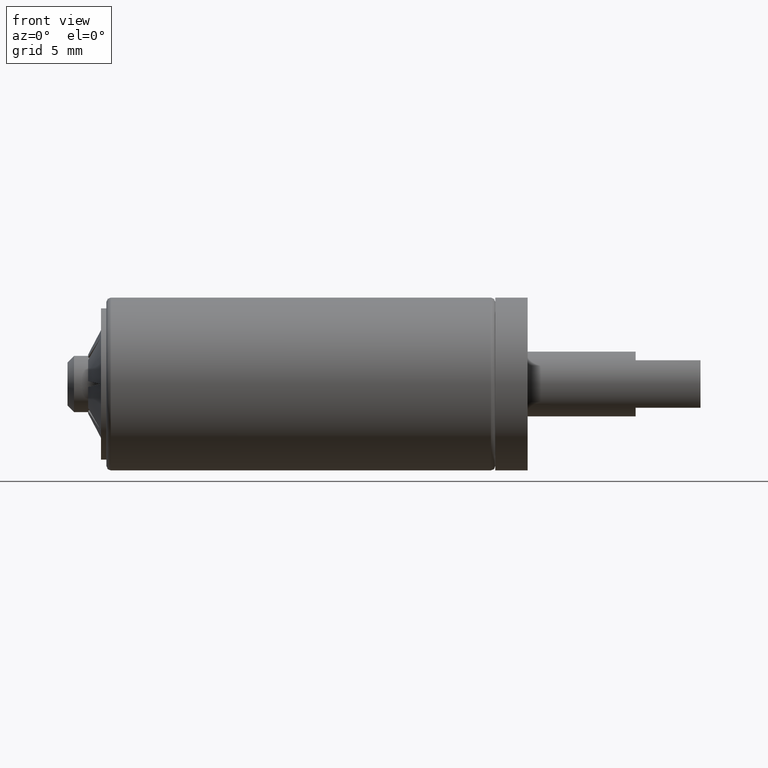
[diagram: clean part render]
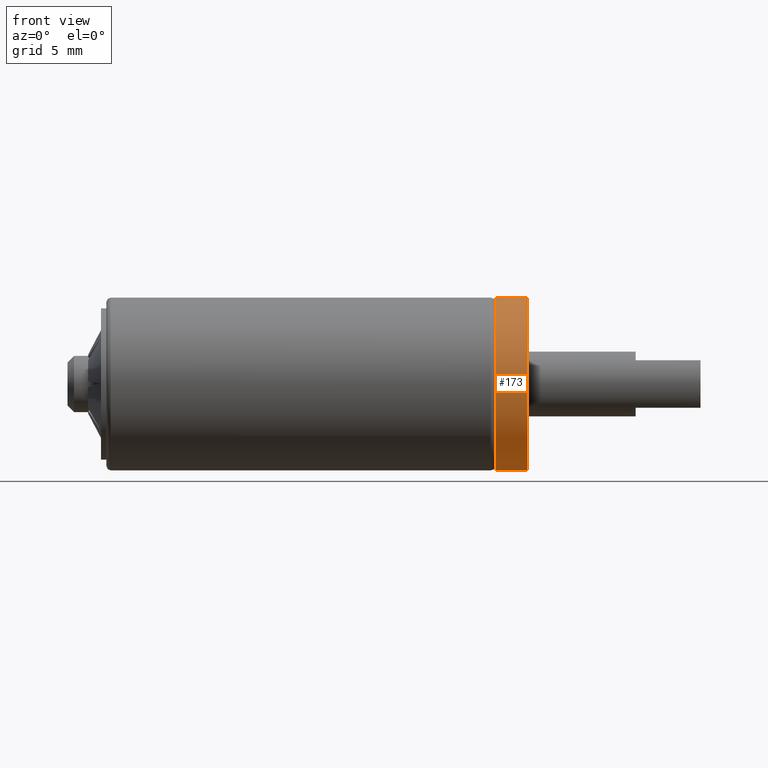
[diagram: same view with one face highlighted and labeled with its STEP entity id]
A machine part, front view. The second image highlights one B-rep face of the part: STEP entity #173.
In plain terms, the highlighted cylindrical surface (partial cylindrical patch) has radius 4 mm, axis along (1, -0, -0).
Its self-contained STEP definition (entity closure, byte-faithful):
#173=ADVANCED_FACE('',(#1537),#1536,.T.);
#1536=CYLINDRICAL_SURFACE('',#2653,4.00000000000E+00);
#1537=FACE_OUTER_BOUND('',#2654,.T.);
#2650=CARTESIAN_POINT('',(9.75000000000E+00,0.00000000000E+00,0.00000000000E+00));
#2651=DIRECTION('',(1.00000000000E+00,-0.00000000000E+00,-0.00000000000E+00));
#2652=DIRECTION('',(-0.00000000000E+00,-0.00000000000E+00,1.00000000000E+00));
#2653=AXIS2_PLACEMENT_3D('',#2650,#2651,#2652);
#2654=EDGE_LOOP('',(#3477,#3478,#3479,#3480));
#3477=ORIENTED_EDGE('',*,*,#3862,.T.);
#3478=ORIENTED_EDGE('',*,*,#3945,.F.);
#3479=ORIENTED_EDGE('',*,*,#3859,.F.);
#3480=ORIENTED_EDGE('',*,*,#3946,.T.);
#3859=EDGE_CURVE('',#5997,#6004,#6005,.T.);
#3862=EDGE_CURVE('',#6018,#6017,#6025,.T.);
#3945=EDGE_CURVE('',#6004,#6017,#6564,.T.);
#3946=EDGE_CURVE('',#5997,#6018,#6570,.T.);
#5997=VERTEX_POINT('',#7963);
#6004=VERTEX_POINT('',#7968);
#6005=CIRCLE('',#7972,4.00000000000E+00);
#6017=VERTEX_POINT('',#7977);
#6018=VERTEX_POINT('',#7978);
#6025=CIRCLE('',#7986,4.00000000000E+00);
#6564=(BOUNDED_CURVE() B_SPLINE_CURVE(1,(#8303,#8304),.UNSPECIFIED.,.F.,.F.) B_SPLINE_CURVE_WITH_KNOTS((2,2),(8.33333134656E-02,9.16666653270E-01),.UNSPECIFIED.) CURVE() GEOMETRIC_REPRESENTATION_ITEM() RATIONAL_B_SPLINE_CURVE((1.00000000000E+00,1.00000000000E+00)) REPRESENTATION_ITEM('') );
#6570=(BOUNDED_CURVE() B_SPLINE_CURVE(1,(#8305,#8306),.UNSPECIFIED.,.F.,.F.) B_SPLINE_CURVE_WITH_KNOTS((2,2),(8.33333333333E-02,9.16666666667E-01),.UNSPECIFIED.) CURVE() GEOMETRIC_REPRESENTATION_ITEM() RATIONAL_B_SPLINE_CURVE((7.50000000000E-01,7.50000000000E-01)) REPRESENTATION_ITEM('') );
#7963=CARTESIAN_POINT('',(9.00000000000E+00,3.19110413522E-04,-3.99999998727E+00));
#7968=CARTESIAN_POINT('',(9.00000000000E+00,5.63161573389E-08,4.00000000000E+00));
#7969=CARTESIAN_POINT('',(9.00000000000E+00,0.00000000000E+00,0.00000000000E+00));
#7970=DIRECTION('',(-1.00000000000E+00,0.00000000000E+00,0.00000000000E+00));
#7971=DIRECTION('',(0.00000000000E+00,9.18643392601E-01,-3.95087733585E-01));
#7972=AXIS2_PLACEMENT_3D('',#7969,#7970,#7971);
#7977=CARTESIAN_POINT('',(1.05000000000E+01,7.40148683083E-16,4.00000000000E+00));
#7978=CARTESIAN_POINT('',(1.05000000000E+01,-1.61781299901E-20,-4.00000000000E+00));
#7983=CARTESIAN_POINT('',(1.05000000000E+01,0.00000000000E+00,0.00000000000E+00));
#7984=DIRECTION('',(-1.00000000000E+00,0.00000000000E+00,0.00000000000E+00));
#7985=DIRECTION('',(-0.00000000000E+00,-1.22464679915E-16,-1.00000000000E+00));
#7986=AXIS2_PLACEMENT_3D('',#7983,#7984,#7985);
#8303=CARTESIAN_POINT('',(8.99999996424E+00,0.00000000000E+00,4.00000000000E+00));
#8304=CARTESIAN_POINT('',(1.04999999759E+01,0.00000000000E+00,4.00000000000E+00));
#8305=CARTESIAN_POINT('',(9.00000000000E+00,1.48029736617E-16,-4.00000000000E+00));
#8306=CARTESIAN_POINT('',(1.05000000000E+01,1.48029736617E-16,-4.00000000000E+00));